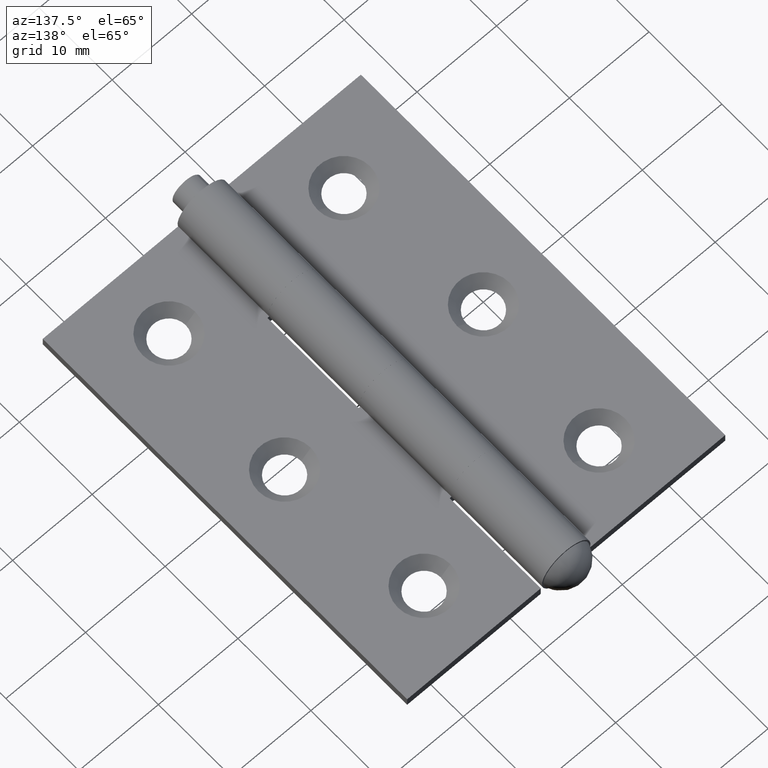
[diagram: clean part render]
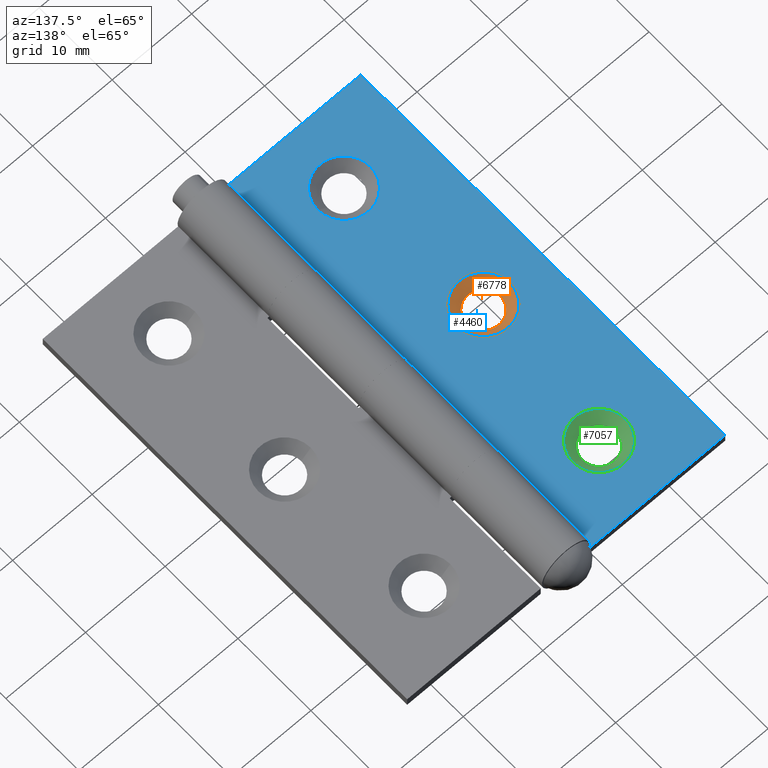
[diagram: same view with three faces highlighted in distinct colors, each labeled with its STEP entity id]
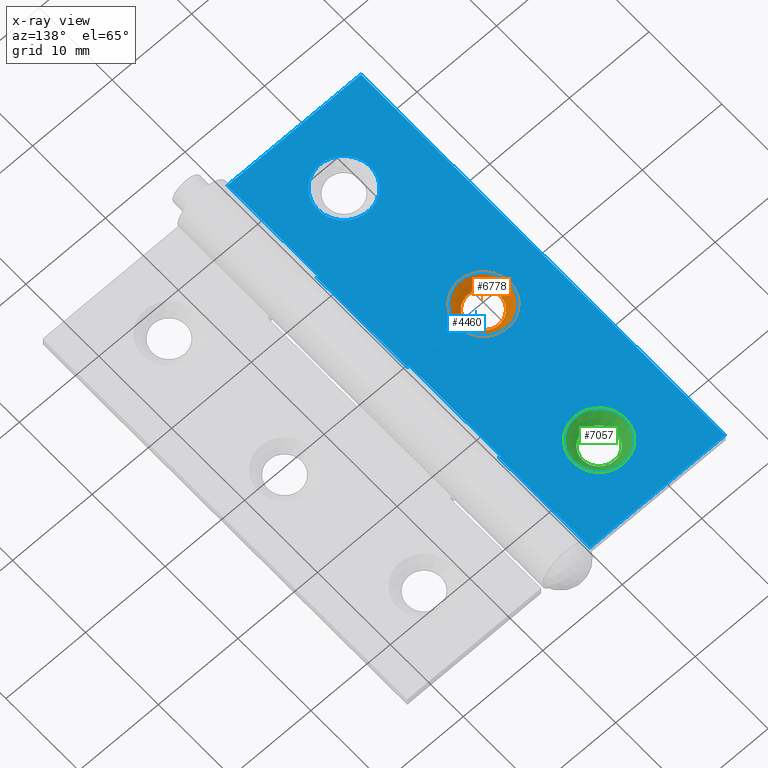
[diagram: x-ray of the same camera — body ghosted, the three highlighted faces saturated]
A machine part, auxiliary view with three faces highlighted in distinct colors.
The next image is the same camera in x-ray (body ghosted, the three faces saturated) — at least one of them is partly hidden behind the body in this view.
Their STEP definitions:

[orange] entity #6778 — the highlighted conical surface has half-angle 45 deg.
#254 = VERTEX_POINT ( 'NONE', #9357 ) ;
#495 = AXIS2_PLACEMENT_3D ( 'NONE', #2749, #10142, #6012 ) ;
#587 = ORIENTED_EDGE ( 'NONE', *, *, #6447, .F. ) ;
#1160 = VERTEX_POINT ( 'NONE', #1876 ) ;
#1171 = CARTESIAN_POINT ( 'NONE',  ( -12.50000000000000355, -1.530808498934191916E-15, -0.6500000000000000222 ) ) ;
#1334 = FACE_BOUND ( 'NONE', #9142, .T. ) ;
#1596 = DIRECTION ( 'NONE',  ( 1.000000000000000000, 0.000000000000000000, 0.000000000000000000 ) ) ;
#1610 = AXIS2_PLACEMENT_3D ( 'NONE', #6551, #9899, #1596 ) ;
#1876 = CARTESIAN_POINT ( 'NONE',  ( -10.40000000000000213, -1.530808498934191916E-15, -1.849999999999999867 ) ) ;
#2749 = CARTESIAN_POINT ( 'NONE',  ( -12.50000000000000355, -1.530808498934191916E-15, -1.849999999999996980 ) ) ;
#3148 = CIRCLE ( 'NONE', #1610, 2.100000000000000977 ) ;
#3419 = FACE_OUTER_BOUND ( 'NONE', #7143, .T. ) ;
#3434 = CIRCLE ( 'NONE', #8640, 3.300000000000004263 ) ;
#4750 = EDGE_CURVE ( 'NONE', #254, #254, #3434, .T. ) ;
#6012 = DIRECTION ( 'NONE',  ( 1.000000000000000000, 0.000000000000000000, 0.000000000000000000 ) ) ;
#6217 = DIRECTION ( 'NONE',  ( -1.000000000000000000, 0.000000000000000000, 0.000000000000000000 ) ) ;
#6447 = EDGE_CURVE ( 'NONE', #1160, #1160, #3148, .T. ) ;
#6551 = CARTESIAN_POINT ( 'NONE',  ( -12.50000000000000355, -1.530808498934191916E-15, -1.849999999999999867 ) ) ;
#6778 = ADVANCED_FACE ( 'NONE', ( #3419, #1334 ), #9713, .F. ) ;
#7143 = EDGE_LOOP ( 'NONE', ( #9580 ) ) ;
#7938 = DIRECTION ( 'NONE',  ( 0.000000000000000000, 0.000000000000000000, -1.000000000000000000 ) ) ;
#8640 = AXIS2_PLACEMENT_3D ( 'NONE', #1171, #7938, #6217 ) ;
#9142 = EDGE_LOOP ( 'NONE', ( #587 ) ) ;
#9357 = CARTESIAN_POINT ( 'NONE',  ( -15.80000000000000782, -1.530808498934191916E-15, -0.6500000000000000222 ) ) ;
#9580 = ORIENTED_EDGE ( 'NONE', *, *, #4750, .F. ) ;
#9713 = CONICAL_SURFACE ( 'NONE', #495, 2.100000000000000977, 0.7853981633974509435 ) ;
#9899 = DIRECTION ( 'NONE',  ( 0.000000000000000000, 0.000000000000000000, 1.000000000000000000 ) ) ;
#10142 = DIRECTION ( 'NONE',  ( 0.000000000000000000, 0.000000000000000000, 1.000000000000000000 ) ) ;

[blue] entity #4460 — the highlighted planar face has unit normal (0, 0, -1).
#51 = FACE_BOUND ( 'NONE', #9607, .T. ) ;
#112 = ORIENTED_EDGE ( 'NONE', *, *, #449, .T. ) ;
#135 = CARTESIAN_POINT ( 'NONE',  ( -20.00000000000000000, -3.469446951953614189E-15, -0.6500000000000000222 ) ) ;
#170 = DIRECTION ( 'NONE',  ( -1.000000000000000000, -2.567906592516314653E-32, 0.000000000000000000 ) ) ;
#183 = FACE_BOUND ( 'NONE', #3432, .T. ) ;
#215 = CARTESIAN_POINT ( 'NONE',  ( -20.00000000000000000, 12.49999999999999467, -0.6500000000000000222 ) ) ;
#254 = VERTEX_POINT ( 'NONE', #9357 ) ;
#270 = VERTEX_POINT ( 'NONE', #7636 ) ;
#311 = FACE_BOUND ( 'NONE', #5497, .T. ) ;
#329 = LINE ( 'NONE', #135, #6485 ) ;
#449 = EDGE_CURVE ( 'NONE', #8110, #1659, #2286, .T. ) ;
#511 = EDGE_CURVE ( 'NONE', #10732, #4806, #6369, .T. ) ;
#530 = ORIENTED_EDGE ( 'NONE', *, *, #7383, .T. ) ;
#641 = LINE ( 'NONE', #215, #9287 ) ;
#652 = CIRCLE ( 'NONE', #3431, 3.300000000000004263 ) ;
#657 = VERTEX_POINT ( 'NONE', #3834 ) ;
#860 = VECTOR ( 'NONE', #8486, 1000.000000000000000 ) ;
#862 = DIRECTION ( 'NONE',  ( -1.000000000000000000, 0.000000000000000000, 0.000000000000000000 ) ) ;
#892 = ORIENTED_EDGE ( 'NONE', *, *, #9550, .T. ) ;
#1023 = VECTOR ( 'NONE', #1216, 1000.000000000000000 ) ;
#1168 = CARTESIAN_POINT ( 'NONE',  ( -3.199999999999997957, 25.00000000000000355, -0.6500000000000000222 ) ) ;
#1171 = CARTESIAN_POINT ( 'NONE',  ( -12.50000000000000355, -1.530808498934191916E-15, -0.6500000000000000222 ) ) ;
#1216 = DIRECTION ( 'NONE',  ( -0.000000000000000000, -1.000000000000000000, -0.000000000000000000 ) ) ;
#1614 = VECTOR ( 'NONE', #8849, 1000.000000000000000 ) ;
#1659 = VERTEX_POINT ( 'NONE', #10405 ) ;
#1944 = LINE ( 'NONE', #8636, #8914 ) ;
#2085 = AXIS2_PLACEMENT_3D ( 'NONE', #10050, #5889, #862 ) ;
#2086 = CARTESIAN_POINT ( 'NONE',  ( -20.00000000000000000, -25.00000000000000000, -0.6500000000000000222 ) ) ;
#2133 = LINE ( 'NONE', #2086, #1614 ) ;
#2246 = VECTOR ( 'NONE', #2896, 1000.000000000000000 ) ;
#2286 = LINE ( 'NONE', #9098, #7695 ) ;
#2518 = FACE_OUTER_BOUND ( 'NONE', #8119, .T. ) ;
#2894 = CARTESIAN_POINT ( 'NONE',  ( -20.00000000000000000, 25.00000000000000000, -0.6500000000000000222 ) ) ;
#2896 = DIRECTION ( 'NONE',  ( 1.000000000000000000, 0.000000000000000000, 0.000000000000000000 ) ) ;
#3068 = DIRECTION ( 'NONE',  ( -1.000000000000000000, 0.000000000000000000, -0.000000000000000000 ) ) ;
#3113 = VERTEX_POINT ( 'NONE', #5917 ) ;
#3431 = AXIS2_PLACEMENT_3D ( 'NONE', #10106, #4238, #9969 ) ;
#3432 = EDGE_LOOP ( 'NONE', ( #4838 ) ) ;
#3434 = CIRCLE ( 'NONE', #8640, 3.300000000000004263 ) ;
#3492 = EDGE_CURVE ( 'NONE', #10732, #5294, #329, .T. ) ;
#3763 = VERTEX_POINT ( 'NONE', #10468 ) ;
#3834 = CARTESIAN_POINT ( 'NONE',  ( -3.199999999999990852, -25.00000000000000000, -0.6500000000000000222 ) ) ;
#3859 = CARTESIAN_POINT ( 'NONE',  ( -2.959729717389750103, -3.469446951953614189E-15, -0.6499999999999995781 ) ) ;
#4047 = ORIENTED_EDGE ( 'NONE', *, *, #4447, .T. ) ;
#4062 = DIRECTION ( 'NONE',  ( -0.000000000000000000, -1.000000000000000000, -0.000000000000000000 ) ) ;
#4238 = DIRECTION ( 'NONE',  ( 0.000000000000000000, 0.000000000000000000, -1.000000000000000000 ) ) ;
#4447 = EDGE_CURVE ( 'NONE', #1659, #657, #2133, .T. ) ;
#4460 = ADVANCED_FACE ( 'NONE', ( #51, #311, #183, #2518 ), #7948, .F. ) ;
#4489 = DIRECTION ( 'NONE',  ( -1.387778780781445922E-16, 1.000000000000000000, 0.000000000000000000 ) ) ;
#4533 = ORIENTED_EDGE ( 'NONE', *, *, #8921, .T. ) ;
#4750 = EDGE_CURVE ( 'NONE', #254, #254, #3434, .T. ) ;
#4806 = VERTEX_POINT ( 'NONE', #6521 ) ;
#4838 = ORIENTED_EDGE ( 'NONE', *, *, #6065, .T. ) ;
#5085 = LINE ( 'NONE', #5271, #5629 ) ;
#5102 = CARTESIAN_POINT ( 'NONE',  ( -14.30000000000001137, 17.50000000000000000, -0.6500000000000000222 ) ) ;
#5195 = CARTESIAN_POINT ( 'NONE',  ( -2.959729717389750103, 25.00000000000000000, -0.6499999999999995781 ) ) ;
#5245 = DIRECTION ( 'NONE',  ( 1.000000000000000000, 1.156482317317871725E-16, 0.000000000000000000 ) ) ;
#5271 = CARTESIAN_POINT ( 'NONE',  ( -3.199999999999997957, 25.00000000000000355, -0.6500000000000000222 ) ) ;
#5294 = VERTEX_POINT ( 'NONE', #6729 ) ;
#5382 = LINE ( 'NONE', #1168, #6300 ) ;
#5497 = EDGE_LOOP ( 'NONE', ( #7567 ) ) ;
#5618 = VERTEX_POINT ( 'NONE', #5102 ) ;
#5629 = VECTOR ( 'NONE', #6187, 1000.000000000000000 ) ;
#5688 = EDGE_CURVE ( 'NONE', #8110, #8881, #6988, .T. ) ;
#5691 = CARTESIAN_POINT ( 'NONE',  ( -20.00000000000000000, 25.00000000000000000, -0.6500000000000000222 ) ) ;
#5741 = AXIS2_PLACEMENT_3D ( 'NONE', #2894, #8196, #3068 ) ;
#5746 = ORIENTED_EDGE ( 'NONE', *, *, #4750, .T. ) ;
#5889 = DIRECTION ( 'NONE',  ( 0.000000000000000000, 0.000000000000000000, -1.000000000000000000 ) ) ;
#5917 = CARTESIAN_POINT ( 'NONE',  ( -14.30000000000000782, -17.50000000000000000, -0.6500000000000000222 ) ) ;
#6065 = EDGE_CURVE ( 'NONE', #5618, #5618, #6970, .T. ) ;
#6084 = CARTESIAN_POINT ( 'NONE',  ( -2.959729717389750103, 25.00000000000000000, -0.6499999999999995781 ) ) ;
#6187 = DIRECTION ( 'NONE',  ( -1.387778780781445676E-16, 1.000000000000000000, 0.000000000000000000 ) ) ;
#6217 = DIRECTION ( 'NONE',  ( -1.000000000000000000, 0.000000000000000000, 0.000000000000000000 ) ) ;
#6300 = VECTOR ( 'NONE', #4489, 1000.000000000000000 ) ;
#6369 = LINE ( 'NONE', #5195, #860 ) ;
#6485 = VECTOR ( 'NONE', #170, 1000.000000000000000 ) ;
#6521 = CARTESIAN_POINT ( 'NONE',  ( -2.959729717389750103, -12.50000000000000355, -0.6499999999999995781 ) ) ;
#6630 = ORIENTED_EDGE ( 'NONE', *, *, #5688, .F. ) ;
#6729 = CARTESIAN_POINT ( 'NONE',  ( -3.199999999999994404, -3.469446051981106942E-15, -0.6500000000000000222 ) ) ;
#6907 = ORIENTED_EDGE ( 'NONE', *, *, #9401, .F. ) ;
#6914 = DIRECTION ( 'NONE',  ( 1.000000000000000000, 1.156482317317871478E-16, 0.000000000000000000 ) ) ;
#6968 = CARTESIAN_POINT ( 'NONE',  ( -2.959729717389750103, 25.00000000000000000, -0.6499999999999995781 ) ) ;
#6970 = CIRCLE ( 'NONE', #2085, 3.300000000000004263 ) ;
#6988 = LINE ( 'NONE', #8740, #2246 ) ;
#7042 = ORIENTED_EDGE ( 'NONE', *, *, #9385, .T. ) ;
#7195 = ORIENTED_EDGE ( 'NONE', *, *, #3492, .T. ) ;
#7383 = EDGE_CURVE ( 'NONE', #657, #270, #5382, .T. ) ;
#7567 = ORIENTED_EDGE ( 'NONE', *, *, #8229, .T. ) ;
#7636 = CARTESIAN_POINT ( 'NONE',  ( -3.199999999999992628, -12.50000000000000711, -0.6500000000000000222 ) ) ;
#7695 = VECTOR ( 'NONE', #4062, 1000.000000000000000 ) ;
#7731 = LINE ( 'NONE', #6968, #1023 ) ;
#7938 = DIRECTION ( 'NONE',  ( 0.000000000000000000, 0.000000000000000000, -1.000000000000000000 ) ) ;
#7948 = PLANE ( 'NONE',  #5741 ) ;
#8110 = VERTEX_POINT ( 'NONE', #5691 ) ;
#8119 = EDGE_LOOP ( 'NONE', ( #7042, #892, #6907, #6630, #112, #4047, #530, #4533, #10190, #7195 ) ) ;
#8196 = DIRECTION ( 'NONE',  ( 0.000000000000000000, 0.000000000000000000, -1.000000000000000000 ) ) ;
#8229 = EDGE_CURVE ( 'NONE', #3113, #3113, #652, .T. ) ;
#8486 = DIRECTION ( 'NONE',  ( -0.000000000000000000, -1.000000000000000000, -0.000000000000000000 ) ) ;
#8636 = CARTESIAN_POINT ( 'NONE',  ( -19.99999999999999645, -12.50000000000000355, -0.6500000000000000222 ) ) ;
#8640 = AXIS2_PLACEMENT_3D ( 'NONE', #1171, #7938, #6217 ) ;
#8740 = CARTESIAN_POINT ( 'NONE',  ( -20.00000000000000000, 25.00000000000000000, -0.6500000000000000222 ) ) ;
#8849 = DIRECTION ( 'NONE',  ( 1.000000000000000000, 0.000000000000000000, 0.000000000000000000 ) ) ;
#8881 = VERTEX_POINT ( 'NONE', #6084 ) ;
#8914 = VECTOR ( 'NONE', #5245, 1000.000000000000000 ) ;
#8921 = EDGE_CURVE ( 'NONE', #270, #4806, #1944, .T. ) ;
#9098 = CARTESIAN_POINT ( 'NONE',  ( -20.00000000000000000, 25.00000000000000000, -0.6500000000000000222 ) ) ;
#9287 = VECTOR ( 'NONE', #6914, 1000.000000000000000 ) ;
#9357 = CARTESIAN_POINT ( 'NONE',  ( -15.80000000000000782, -1.530808498934191916E-15, -0.6500000000000000222 ) ) ;
#9385 = EDGE_CURVE ( 'NONE', #5294, #3763, #5085, .T. ) ;
#9394 = VERTEX_POINT ( 'NONE', #10409 ) ;
#9401 = EDGE_CURVE ( 'NONE', #8881, #9394, #7731, .T. ) ;
#9550 = EDGE_CURVE ( 'NONE', #3763, #9394, #641, .T. ) ;
#9607 = EDGE_LOOP ( 'NONE', ( #5746 ) ) ;
#9969 = DIRECTION ( 'NONE',  ( -1.000000000000000000, 0.000000000000000000, 0.000000000000000000 ) ) ;
#10050 = CARTESIAN_POINT ( 'NONE',  ( -11.00000000000000711, 17.50000000000000000, -0.6500000000000000222 ) ) ;
#10106 = CARTESIAN_POINT ( 'NONE',  ( -11.00000000000000355, -17.50000000000000000, -0.6500000000000000222 ) ) ;
#10190 = ORIENTED_EDGE ( 'NONE', *, *, #511, .F. ) ;
#10405 = CARTESIAN_POINT ( 'NONE',  ( -20.00000000000000000, -25.00000000000000000, -0.6500000000000000222 ) ) ;
#10409 = CARTESIAN_POINT ( 'NONE',  ( -2.959729717389750103, 12.49999999999999645, -0.6499999999999995781 ) ) ;
#10468 = CARTESIAN_POINT ( 'NONE',  ( -3.199999999999996181, 12.49999999999999645, -0.6500000000000000222 ) ) ;
#10732 = VERTEX_POINT ( 'NONE', #3859 ) ;

[green] entity #7057 — the highlighted conical surface has half-angle 45 deg.
#11 = ORIENTED_EDGE ( 'NONE', *, *, #6065, .F. ) ;
#406 = DIRECTION ( 'NONE',  ( 1.000000000000000000, 0.000000000000000000, 0.000000000000000000 ) ) ;
#416 = CIRCLE ( 'NONE', #5174, 2.100000000000000977 ) ;
#862 = DIRECTION ( 'NONE',  ( -1.000000000000000000, 0.000000000000000000, 0.000000000000000000 ) ) ;
#2085 = AXIS2_PLACEMENT_3D ( 'NONE', #10050, #5889, #862 ) ;
#2403 = DIRECTION ( 'NONE',  ( 1.000000000000000000, 0.000000000000000000, 0.000000000000000000 ) ) ;
#2848 = VERTEX_POINT ( 'NONE', #10150 ) ;
#3154 = FACE_BOUND ( 'NONE', #5893, .T. ) ;
#5102 = CARTESIAN_POINT ( 'NONE',  ( -14.30000000000001137, 17.50000000000000000, -0.6500000000000000222 ) ) ;
#5174 = AXIS2_PLACEMENT_3D ( 'NONE', #7968, #7146, #406 ) ;
#5618 = VERTEX_POINT ( 'NONE', #5102 ) ;
#5685 = DIRECTION ( 'NONE',  ( 0.000000000000000000, 0.000000000000000000, 1.000000000000000000 ) ) ;
#5760 = CARTESIAN_POINT ( 'NONE',  ( -11.00000000000000711, 17.50000000000000000, -1.849999999999996536 ) ) ;
#5889 = DIRECTION ( 'NONE',  ( 0.000000000000000000, 0.000000000000000000, -1.000000000000000000 ) ) ;
#5893 = EDGE_LOOP ( 'NONE', ( #5983 ) ) ;
#5983 = ORIENTED_EDGE ( 'NONE', *, *, #7514, .F. ) ;
#6065 = EDGE_CURVE ( 'NONE', #5618, #5618, #6970, .T. ) ;
#6582 = CONICAL_SURFACE ( 'NONE', #8444, 2.100000000000000977, 0.7853981633974510546 ) ;
#6970 = CIRCLE ( 'NONE', #2085, 3.300000000000004263 ) ;
#7057 = ADVANCED_FACE ( 'NONE', ( #7375, #3154 ), #6582, .F. ) ;
#7146 = DIRECTION ( 'NONE',  ( 0.000000000000000000, 0.000000000000000000, 1.000000000000000000 ) ) ;
#7375 = FACE_OUTER_BOUND ( 'NONE', #8794, .T. ) ;
#7514 = EDGE_CURVE ( 'NONE', #2848, #2848, #416, .T. ) ;
#7968 = CARTESIAN_POINT ( 'NONE',  ( -11.00000000000000711, 17.50000000000000000, -1.849999999999999867 ) ) ;
#8444 = AXIS2_PLACEMENT_3D ( 'NONE', #5760, #5685, #2403 ) ;
#8794 = EDGE_LOOP ( 'NONE', ( #11 ) ) ;
#10050 = CARTESIAN_POINT ( 'NONE',  ( -11.00000000000000711, 17.50000000000000000, -0.6500000000000000222 ) ) ;
#10150 = CARTESIAN_POINT ( 'NONE',  ( -8.900000000000005684, 17.50000000000000000, -1.849999999999999867 ) ) ;